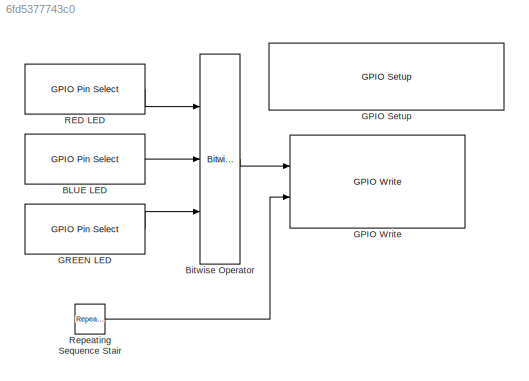
MODEL slx_6fd5377743c0
KIND model
BLOCK [Reference] BLUE LED  REF=stellaris_lib/GPIO/GPIO Pin Select
  GPIO_PIN_X = GPIO_PIN_2
  Ports = [0, 1]
  SourceBlock = stellaris_lib/GPIO/GPIO Pin Select
  SourceType = GPIO pin selector
BLOCK [Reference] Bitwise Operator  REF=simulink/Logic and Bit
Operations/Bitwise
Operator
  BitMask = bin2dec('11011001')
  BitMaskRealWorld = Stored Integer
  NumInputPorts = 3
  Ports = [3, 1]
  SourceBlock = simulink/Logic and Bit\nOperations/Bitwise\nOperator
  SourceType = Bitwise Operator
  UseBitMask = off
  logicop = OR
BLOCK [Reference] GPIO Setup  REF=stellaris_lib/GPIO/GPIO Setup
  GPIO_PORTX_BASE = GPIO_PORTF_BASE
  PinsOutput_0 = Input
  PinsOutput_1 = Output
  PinsOutput_2 = Output
  PinsOutput_3 = Output
  PinsOutput_4 = Input
  PinsOutput_5 = Input
  PinsOutput_6 = Input
  PinsOutput_7 = Input
  Ports = []
  SourceBlock = stellaris_lib/GPIO/GPIO Setup
  SourceType = GPIO Setup
BLOCK [Reference] GPIO Write  REF=stellaris_lib/GPIO/GPIO Write
  GPIO_PORTX_BASE = GPIO_PORTF_BASE
  Ports = [2]
  SourceBlock = stellaris_lib/GPIO/GPIO Write
  SourceType = GPIO Write
BLOCK [Reference] GREEN LED  REF=stellaris_lib/GPIO/GPIO Pin Select
  GPIO_PIN_X = GPIO_PIN_3
  Ports = [0, 1]
  SourceBlock = stellaris_lib/GPIO/GPIO Pin Select
  SourceType = GPIO pin selector
BLOCK [Reference] RED LED  REF=stellaris_lib/GPIO/GPIO Pin Select
  GPIO_PIN_X = GPIO_PIN_1
  Ports = [0, 1]
  SourceBlock = stellaris_lib/GPIO/GPIO Pin Select
  SourceType = GPIO pin selector
BLOCK [Reference] Repeating Sequence Stair  REF=simulink/Sources/Repeating
Sequence
Stair
  ConRadixGroup = Best Precision: Vector-wise
  LockScale = off
  OutDataType = fixdt(0,8)
  OutDataTypeStr = uint8
  OutMax = []
  OutMin = []
  OutScaling = 2^-12
  OutValues = [0 2 4 8].'
  OutputDataTypeScalingMode = uint8
  Ports = [0, 1]
  SourceBlock = simulink/Sources/Repeating\nSequence\nStair
  SourceType = Repeating Sequence Stair
  tsamp = 1
LINE BLUE LED:1 -> Bitwise Operator:2
LINE Bitwise Operator:1 -> GPIO Write:1
LINE GREEN LED:1 -> Bitwise Operator:3
LINE RED LED:1 -> Bitwise Operator:1
LINE Repeating Sequence Stair:1 -> GPIO Write:2
